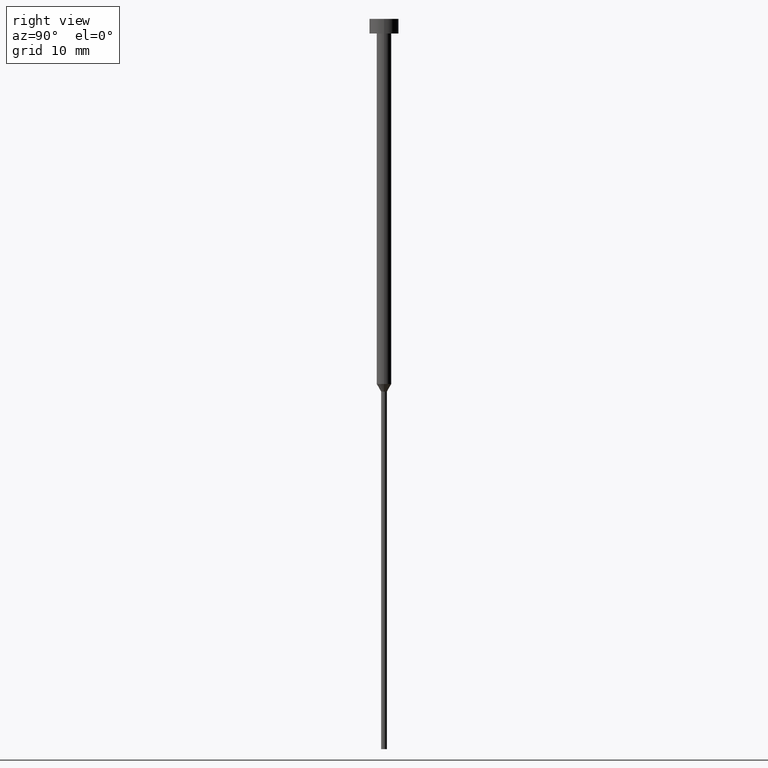
[diagram: clean part render]
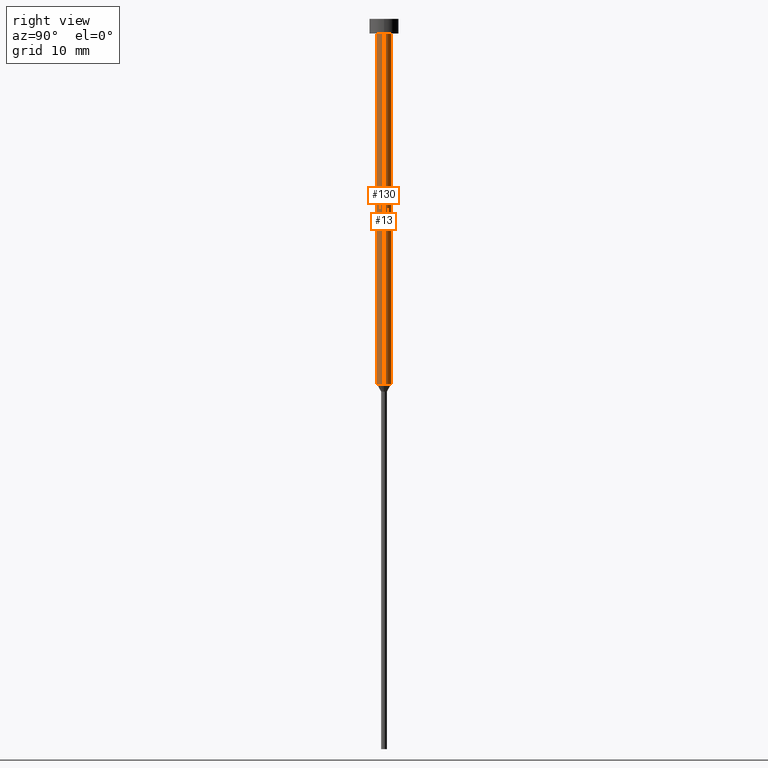
[diagram: same view with one multi-face feature highlighted, each face labeled with its STEP entity id]
A machine part, right view. The highlighted faces form ONE feature: a constant-radius fillet chain: 2 tangent blend faces with common blend radius 1 mm. The faces share edges in the B-rep.
Their STEP definitions:
[1] entity #13 (Cylinder):
#13 = ADVANCED_FACE ( 'NONE', ( #16 ), #322, .T. ) ;
#16 = FACE_OUTER_BOUND ( 'NONE', #67, .T. ) ;
#24 = ORIENTED_EDGE ( 'NONE', *, *, #184, .T. ) ;
#26 = VERTEX_POINT ( 'NONE', #198 ) ;
#29 = EDGE_CURVE ( 'NONE', #26, #283, #115, .T. ) ;
#30 = ORIENTED_EDGE ( 'NONE', *, *, #29, .F. ) ;
#36 = DIRECTION ( 'NONE',  ( -0.000000000000000000, -0.000000000000000000, 1.000000000000000000 ) ) ;
#59 = AXIS2_PLACEMENT_3D ( 'NONE', #248, #308, #353 ) ;
#66 = CARTESIAN_POINT ( 'NONE',  ( 0.000000000000000000, 0.000000000000000000, -2.000000000000000444 ) ) ;
#67 = EDGE_LOOP ( 'NONE', ( #24, #242, #30, #138 ) ) ;
#89 = DIRECTION ( 'NONE',  ( -0.000000000000000000, -0.000000000000000000, 1.000000000000000000 ) ) ;
#92 = VECTOR ( 'NONE', #159, 1000.000000000000000 ) ;
#100 = AXIS2_PLACEMENT_3D ( 'NONE', #289, #296, #349 ) ;
#115 = CIRCLE ( 'NONE', #333, 1.000000000000003553 ) ;
#116 = LINE ( 'NONE', #133, #305 ) ;
#125 = VERTEX_POINT ( 'NONE', #337 ) ;
#132 = DIRECTION ( 'NONE',  ( 1.000000000000000000, 0.000000000000000000, 0.000000000000000000 ) ) ;
#133 = CARTESIAN_POINT ( 'NONE',  ( 1.000000000000003331, 0.000000000000000000, 0.000000000000000000 ) ) ;
#138 = ORIENTED_EDGE ( 'NONE', *, *, #223, .F. ) ;
#159 = DIRECTION ( 'NONE',  ( -0.000000000000000000, -0.000000000000000000, 1.000000000000000000 ) ) ;
#179 = CARTESIAN_POINT ( 'NONE',  ( -1.000000000000003553, 1.224646799147357398E-16, -2.000000000000000444 ) ) ;
#184 = EDGE_CURVE ( 'NONE', #125, #310, #241, .T. ) ;
#196 = LINE ( 'NONE', #199, #92 ) ;
#198 = CARTESIAN_POINT ( 'NONE',  ( 1.000000000000003553, 0.000000000000000000, -2.000000000000000444 ) ) ;
#199 = CARTESIAN_POINT ( 'NONE',  ( -1.000000000000003331, 1.224646799147357151E-16, 0.000000000000000000 ) ) ;
#223 = EDGE_CURVE ( 'NONE', #125, #26, #116, .T. ) ;
#226 = CARTESIAN_POINT ( 'NONE',  ( -1.000000000000003109, 1.224646799147356905E-16, -50.00000000000000000 ) ) ;
#241 = CIRCLE ( 'NONE', #59, 1.000000000000003109 ) ;
#242 = ORIENTED_EDGE ( 'NONE', *, *, #301, .T. ) ;
#248 = CARTESIAN_POINT ( 'NONE',  ( 0.000000000000000000, 0.000000000000000000, -50.00000000000000000 ) ) ;
#283 = VERTEX_POINT ( 'NONE', #179 ) ;
#289 = CARTESIAN_POINT ( 'NONE',  ( 0.000000000000000000, 0.000000000000000000, 0.000000000000000000 ) ) ;
#296 = DIRECTION ( 'NONE',  ( -0.000000000000000000, -0.000000000000000000, 1.000000000000000000 ) ) ;
#301 = EDGE_CURVE ( 'NONE', #310, #283, #196, .T. ) ;
#305 = VECTOR ( 'NONE', #89, 1000.000000000000000 ) ;
#308 = DIRECTION ( 'NONE',  ( -0.000000000000000000, -0.000000000000000000, 1.000000000000000000 ) ) ;
#310 = VERTEX_POINT ( 'NONE', #226 ) ;
#322 = CYLINDRICAL_SURFACE ( 'NONE', #100, 1.000000000000003331 ) ;
#333 = AXIS2_PLACEMENT_3D ( 'NONE', #66, #36, #132 ) ;
#337 = CARTESIAN_POINT ( 'NONE',  ( 1.000000000000003109, 0.000000000000000000, -50.00000000000000000 ) ) ;
#349 = DIRECTION ( 'NONE',  ( 1.000000000000000000, 0.000000000000000000, 0.000000000000000000 ) ) ;
#353 = DIRECTION ( 'NONE',  ( 1.000000000000000000, 0.000000000000000000, 0.000000000000000000 ) ) ;
[2] entity #130 (Cylinder):
#26 = VERTEX_POINT ( 'NONE', #198 ) ;
#71 = AXIS2_PLACEMENT_3D ( 'NONE', #284, #257, #317 ) ;
#86 = FACE_OUTER_BOUND ( 'NONE', #263, .T. ) ;
#89 = DIRECTION ( 'NONE',  ( -0.000000000000000000, -0.000000000000000000, 1.000000000000000000 ) ) ;
#92 = VECTOR ( 'NONE', #159, 1000.000000000000000 ) ;
#116 = LINE ( 'NONE', #133, #305 ) ;
#125 = VERTEX_POINT ( 'NONE', #337 ) ;
#130 = ADVANCED_FACE ( 'NONE', ( #86 ), #234, .T. ) ;
#133 = CARTESIAN_POINT ( 'NONE',  ( 1.000000000000003331, 0.000000000000000000, 0.000000000000000000 ) ) ;
#136 = DIRECTION ( 'NONE',  ( -0.000000000000000000, -0.000000000000000000, 1.000000000000000000 ) ) ;
#159 = DIRECTION ( 'NONE',  ( -0.000000000000000000, -0.000000000000000000, 1.000000000000000000 ) ) ;
#164 = AXIS2_PLACEMENT_3D ( 'NONE', #293, #136, #243 ) ;
#173 = DIRECTION ( 'NONE',  ( -0.000000000000000000, -0.000000000000000000, 1.000000000000000000 ) ) ;
#179 = CARTESIAN_POINT ( 'NONE',  ( -1.000000000000003553, 1.224646799147357398E-16, -2.000000000000000444 ) ) ;
#192 = ORIENTED_EDGE ( 'NONE', *, *, #301, .F. ) ;
#196 = LINE ( 'NONE', #199, #92 ) ;
#198 = CARTESIAN_POINT ( 'NONE',  ( 1.000000000000003553, 0.000000000000000000, -2.000000000000000444 ) ) ;
#199 = CARTESIAN_POINT ( 'NONE',  ( -1.000000000000003331, 1.224646799147357151E-16, 0.000000000000000000 ) ) ;
#201 = DIRECTION ( 'NONE',  ( 1.000000000000000000, 0.000000000000000000, 0.000000000000000000 ) ) ;
#205 = ORIENTED_EDGE ( 'NONE', *, *, #223, .T. ) ;
#223 = EDGE_CURVE ( 'NONE', #125, #26, #116, .T. ) ;
#225 = CIRCLE ( 'NONE', #71, 1.000000000000003109 ) ;
#226 = CARTESIAN_POINT ( 'NONE',  ( -1.000000000000003109, 1.224646799147356905E-16, -50.00000000000000000 ) ) ;
#234 = CYLINDRICAL_SURFACE ( 'NONE', #288, 1.000000000000003331 ) ;
#243 = DIRECTION ( 'NONE',  ( 1.000000000000000000, 0.000000000000000000, 0.000000000000000000 ) ) ;
#251 = EDGE_CURVE ( 'NONE', #283, #26, #304, .T. ) ;
#257 = DIRECTION ( 'NONE',  ( -0.000000000000000000, -0.000000000000000000, 1.000000000000000000 ) ) ;
#263 = EDGE_LOOP ( 'NONE', ( #192, #340, #205, #272 ) ) ;
#269 = CARTESIAN_POINT ( 'NONE',  ( 0.000000000000000000, 0.000000000000000000, 0.000000000000000000 ) ) ;
#272 = ORIENTED_EDGE ( 'NONE', *, *, #251, .F. ) ;
#283 = VERTEX_POINT ( 'NONE', #179 ) ;
#284 = CARTESIAN_POINT ( 'NONE',  ( 0.000000000000000000, 0.000000000000000000, -50.00000000000000000 ) ) ;
#288 = AXIS2_PLACEMENT_3D ( 'NONE', #269, #173, #201 ) ;
#293 = CARTESIAN_POINT ( 'NONE',  ( 0.000000000000000000, 0.000000000000000000, -2.000000000000000444 ) ) ;
#301 = EDGE_CURVE ( 'NONE', #310, #283, #196, .T. ) ;
#304 = CIRCLE ( 'NONE', #164, 1.000000000000003553 ) ;
#305 = VECTOR ( 'NONE', #89, 1000.000000000000000 ) ;
#310 = VERTEX_POINT ( 'NONE', #226 ) ;
#311 = EDGE_CURVE ( 'NONE', #310, #125, #225, .T. ) ;
#317 = DIRECTION ( 'NONE',  ( 1.000000000000000000, 0.000000000000000000, 0.000000000000000000 ) ) ;
#337 = CARTESIAN_POINT ( 'NONE',  ( 1.000000000000003109, 0.000000000000000000, -50.00000000000000000 ) ) ;
#340 = ORIENTED_EDGE ( 'NONE', *, *, #311, .T. ) ;